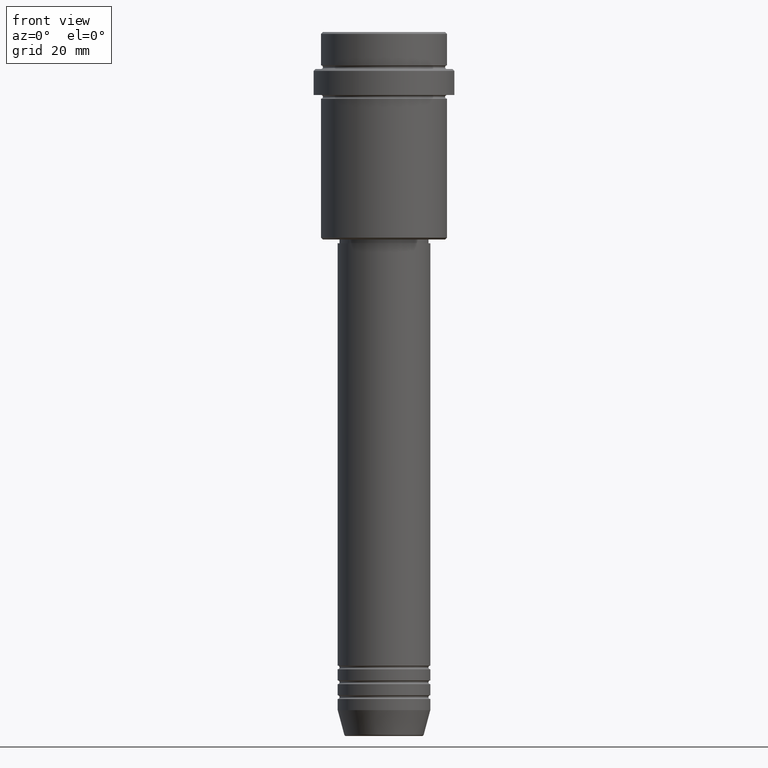
[diagram: clean part render]
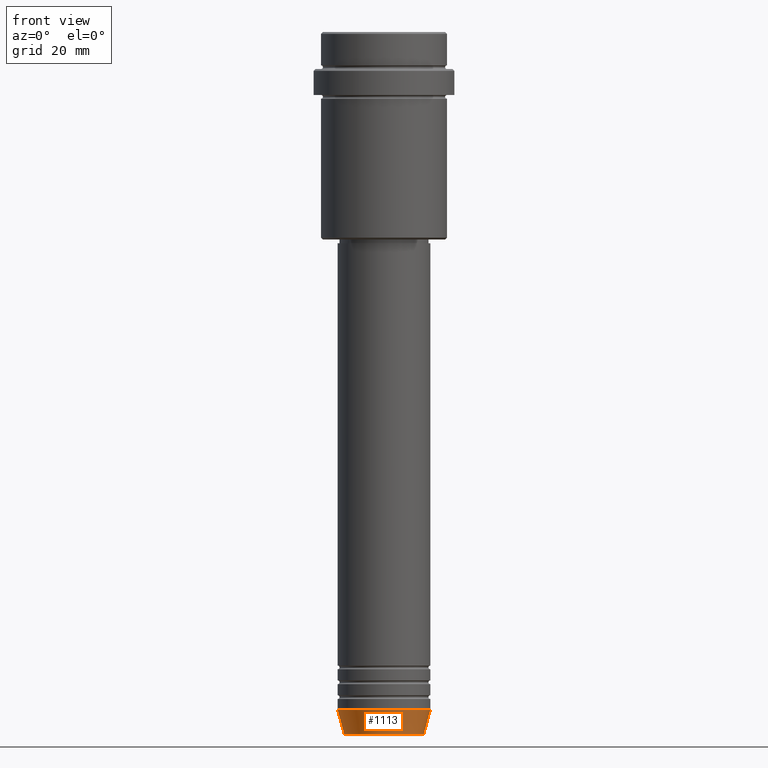
[diagram: same view with one face highlighted and labeled with its STEP entity id]
A machine part, front view. The second image highlights one B-rep face of the part: STEP entity #1113.
In plain terms, the highlighted conical surface has half-angle 15 deg.
Its self-contained STEP definition (entity closure, byte-faithful):
#2 = CARTESIAN_POINT ( 'NONE',  ( -12.50000000000000000, 1.530808498934191521E-15, -183.0000000000000000 ) ) ;
#7 = EDGE_CURVE ( 'NONE', #141, #369, #22, .T. ) ;
#22 = LINE ( 'NONE', #378, #597 ) ;
#69 = CARTESIAN_POINT ( 'NONE',  ( 0.000000000000000000, 0.000000000000000000, -189.6294095225512706 ) ) ;
#102 = DIRECTION ( 'NONE',  ( 1.000000000000000000, 0.000000000000000000, 0.000000000000000000 ) ) ;
#117 = ORIENTED_EDGE ( 'NONE', *, *, #535, .F. ) ;
#141 = VERTEX_POINT ( 'NONE', #1250 ) ;
#186 = CONICAL_SURFACE ( 'NONE', #881, 12.50000000000000000, 0.2617993877991500740 ) ;
#209 = ORIENTED_EDGE ( 'NONE', *, *, #966, .T. ) ;
#279 = LINE ( 'NONE', #829, #943 ) ;
#344 = DIRECTION ( 'NONE',  ( 1.000000000000000000, 0.000000000000000000, 0.000000000000000000 ) ) ;
#369 = VERTEX_POINT ( 'NONE', #2 ) ;
#378 = CARTESIAN_POINT ( 'NONE',  ( -12.50000000000000000, 1.530808498934191521E-15, -183.0000000000000000 ) ) ;
#470 = DIRECTION ( 'NONE',  ( -0.2588190451025213501, 3.169619151431772337E-17, 0.9659258262890680902 ) ) ;
#509 = DIRECTION ( 'NONE',  ( -0.000000000000000000, -0.000000000000000000, 1.000000000000000000 ) ) ;
#520 = FACE_OUTER_BOUND ( 'NONE', #1178, .T. ) ;
#535 = EDGE_CURVE ( 'NONE', #369, #1090, #833, .T. ) ;
#536 = CARTESIAN_POINT ( 'NONE',  ( 0.000000000000000000, 0.000000000000000000, -183.0000000000000000 ) ) ;
#597 = VECTOR ( 'NONE', #470, 1000.000000000000000 ) ;
#691 = DIRECTION ( 'NONE',  ( 0.2588190451025213501, 0.000000000000000000, 0.9659258262890680902 ) ) ;
#729 = CARTESIAN_POINT ( 'NONE',  ( 12.50000000000000000, 0.000000000000000000, -183.0000000000000000 ) ) ;
#783 = AXIS2_PLACEMENT_3D ( 'NONE', #69, #509, #948 ) ;
#793 = DIRECTION ( 'NONE',  ( -0.000000000000000000, -0.000000000000000000, 1.000000000000000000 ) ) ;
#829 = CARTESIAN_POINT ( 'NONE',  ( 12.50000000000000000, 0.000000000000000000, -183.0000000000000000 ) ) ;
#833 = CIRCLE ( 'NONE', #1140, 12.50000000000000000 ) ;
#881 = AXIS2_PLACEMENT_3D ( 'NONE', #536, #1084, #102 ) ;
#943 = VECTOR ( 'NONE', #691, 1000.000000000000000 ) ;
#948 = DIRECTION ( 'NONE',  ( 1.000000000000000000, 0.000000000000000000, 0.000000000000000000 ) ) ;
#953 = ORIENTED_EDGE ( 'NONE', *, *, #7, .F. ) ;
#966 = EDGE_CURVE ( 'NONE', #1141, #1090, #279, .T. ) ;
#1030 = ORIENTED_EDGE ( 'NONE', *, *, #1399, .T. ) ;
#1084 = DIRECTION ( 'NONE',  ( -0.000000000000000000, -0.000000000000000000, 1.000000000000000000 ) ) ;
#1090 = VERTEX_POINT ( 'NONE', #729 ) ;
#1113 = ADVANCED_FACE ( 'NONE', ( #520 ), #186, .T. ) ;
#1140 = AXIS2_PLACEMENT_3D ( 'NONE', #1322, #793, #344 ) ;
#1141 = VERTEX_POINT ( 'NONE', #1402 ) ;
#1178 = EDGE_LOOP ( 'NONE', ( #953, #1030, #209, #117 ) ) ;
#1206 = CIRCLE ( 'NONE', #783, 10.72365507213718416 ) ;
#1250 = CARTESIAN_POINT ( 'NONE',  ( -10.72365507213718416, 1.422038742429750121E-15, -189.6294095225512706 ) ) ;
#1322 = CARTESIAN_POINT ( 'NONE',  ( 0.000000000000000000, 0.000000000000000000, -183.0000000000000000 ) ) ;
#1399 = EDGE_CURVE ( 'NONE', #141, #1141, #1206, .T. ) ;
#1402 = CARTESIAN_POINT ( 'NONE',  ( 10.72365507213718416, 0.000000000000000000, -189.6294095225512706 ) ) ;